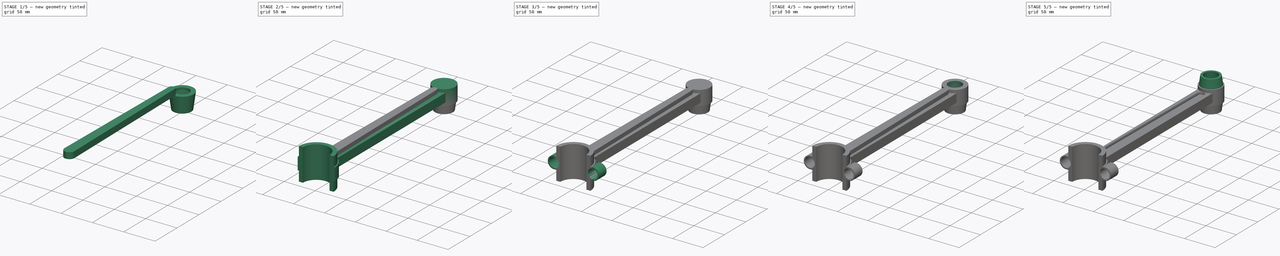
[diagram: build sequence overview — one tinted view per stage of 5, left to right]
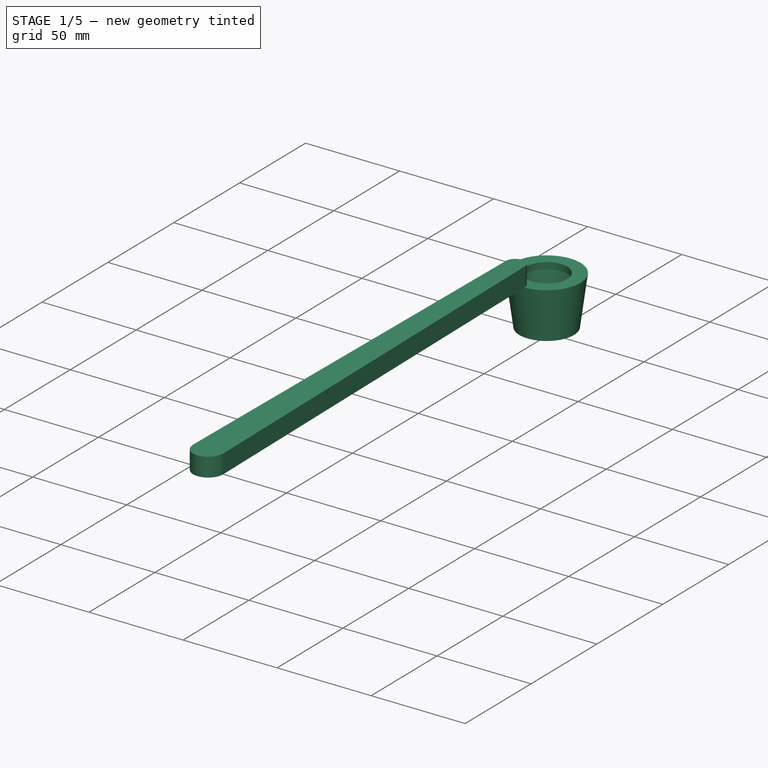
[diagram: stage 1 of 5 — iso view after this stage's code; geometry added in this stage tinted green]
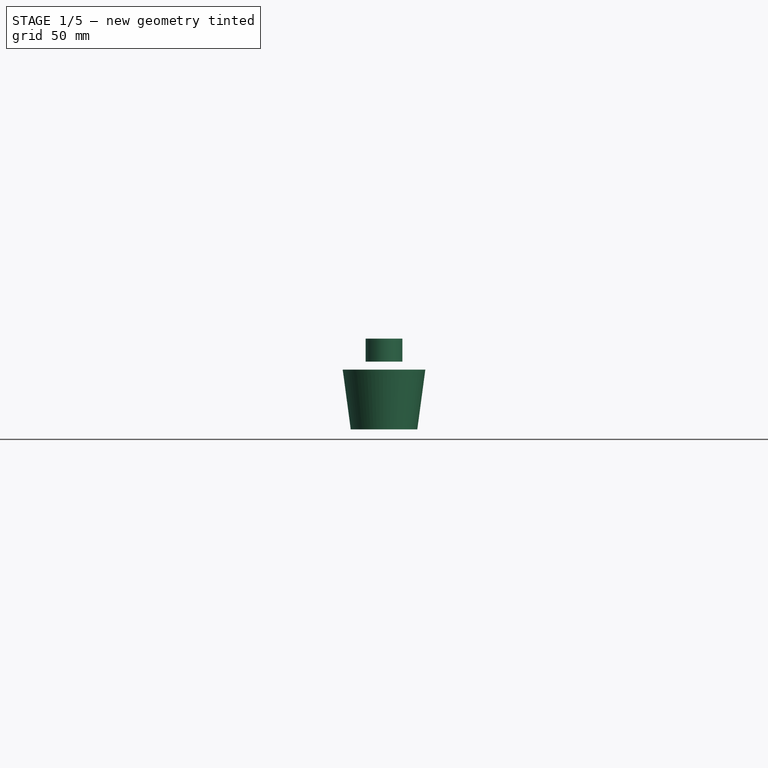
[diagram: stage 1 of 5 — front view after this stage's code; geometry added in this stage tinted green]
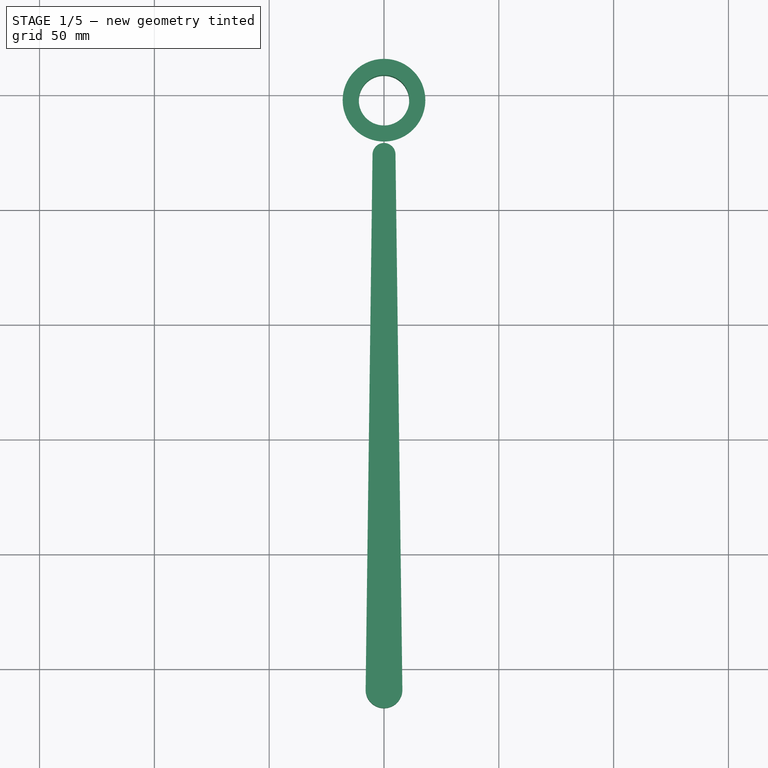
[diagram: stage 1 of 5 — top view after this stage's code; geometry added in this stage tinted green]
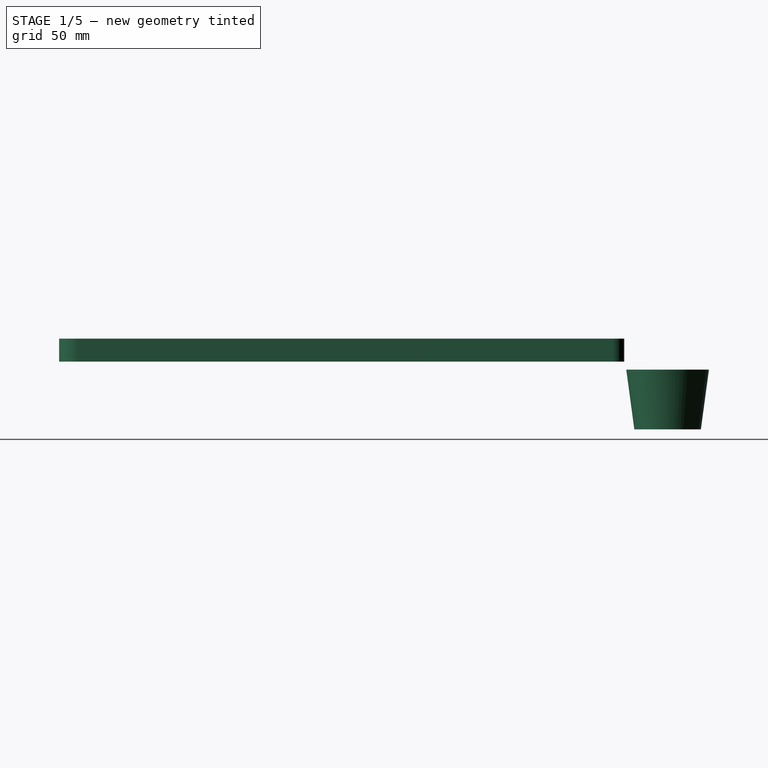
[diagram: stage 1 of 5 — right view after this stage's code; geometry added in this stage tinted green]
FCSTD DOCUMENT  (FreeCAD 0.16R6700 (Git))
Label: Biela Automovil B
License: All rights reserved
LicenseURL: http://en.wikipedia.org/wiki/All_rights_reserved
objects: Sketcher::SketchObject×14, PartDesign::Pocket×7, PartDesign::Pad×6, Part::MultiFuse×5, PartDesign::Fillet×4, Part::Cone×1, Part::Thickness×1, Part::Mirroring×1, Part::Cut×1
note: 53 computed .brp shape members not serialized (recipe doc carries the construction recipe); baked Part::Feature solids carry a one-line shape summary decoded from their .brp

FEATURE [Part::Cone] Cone  label="Cono"
  Angle = 360
  Height = 26
  Placement = pos=(0,147.5,0) rot=(0,0,1;0rad)
  Radius1 = 18
  Radius2 = 14.5
FEATURE [Part::Thickness] Thickness
  Faces = -> Cone [Face2]
  Intersection = true
  Join = 2
  Mode = 1
  SelfIntersection = false
  Value = -3.5
FEATURE [Sketcher::SketchObject] Sketch009
  Placement = pos=(0,0,3.5) rot=(0,0,1;0rad)
  Support = -> Thickness [Face5]
  sketch-geometry (1):
    g0: Circle CenterX=0 CenterY=147.5 CenterZ=0 NormalX=0 NormalY=0 NormalZ=1 Radius=11
  constraints (3):
    c: Radius(g0) = 11
    c: PointOnObject(g0,g-2)
    c: DistanceY(g-1,g0) = 147.5
FEATURE [PartDesign::Pocket] Pocket003
  Length = 5
  Sketch = -> Sketch009
  Type = 1
FEATURE [Part::Mirroring] Part__Mirroring  label="Pocket003 (Mirror #1)"
  Base = (0,0,0)
  Normal = (0,0,1)
  Source = -> Pocket003
FEATURE [Sketcher::SketchObject] Sketch012
  Placement = pos=(0,0,3.5) rot=(0,0,1;0rad)
  sketch-geometry (4):
    g0: ArcOfCircle CenterX=0 CenterY=123.628 CenterZ=0 NormalX=0 NormalY=0 NormalZ=1 Radius=5 StartAngle=0.0128688 EndAngle=3.12872
    g1: ArcOfCircle CenterX=0 CenterY=-109.5 CenterZ=0 NormalX=0 NormalY=0 NormalZ=1 Radius=8 StartAngle=3.12872 EndAngle=6.29605
    g2: LineSegment StartX=-4.99959 StartY=123.693 StartZ=0 EndX=-7.99934 EndY=-109.397 EndZ=0
    g3: LineSegment StartX=4.99959 StartY=123.693 StartZ=0 EndX=7.99934 EndY=-109.397 EndZ=0
  constraints (9):
    c: Tangent(g0,g3) = 1.5708
    c: Tangent(g0,g2) = -1.5708
    c: Tangent(g2,g1) = -1.5708
    c: Tangent(g3,g1) = 1.5708
    c: Radius(g1) = 8
    c: Radius(g0) = 5
    c: PointOnObject(g0,g-2)
    c: PointOnObject(g1,g-2)
    c: DistanceY(g1,g-1) = 109.5
FEATURE [PartDesign::Pad] Pad005
  Length = 10
  Length2 = 100
  Placement = pos=(0,0,3.5) rot=(0,0,1;0rad)
  Sketch = -> Sketch012
  Type = 0
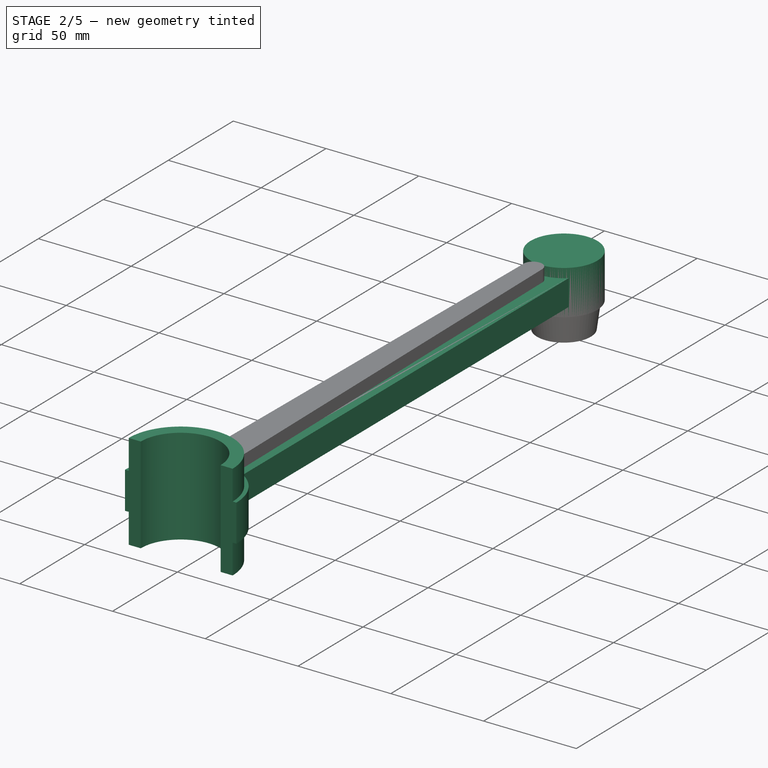
[diagram: stage 2 of 5 — iso view after this stage's code; geometry added in this stage tinted green]
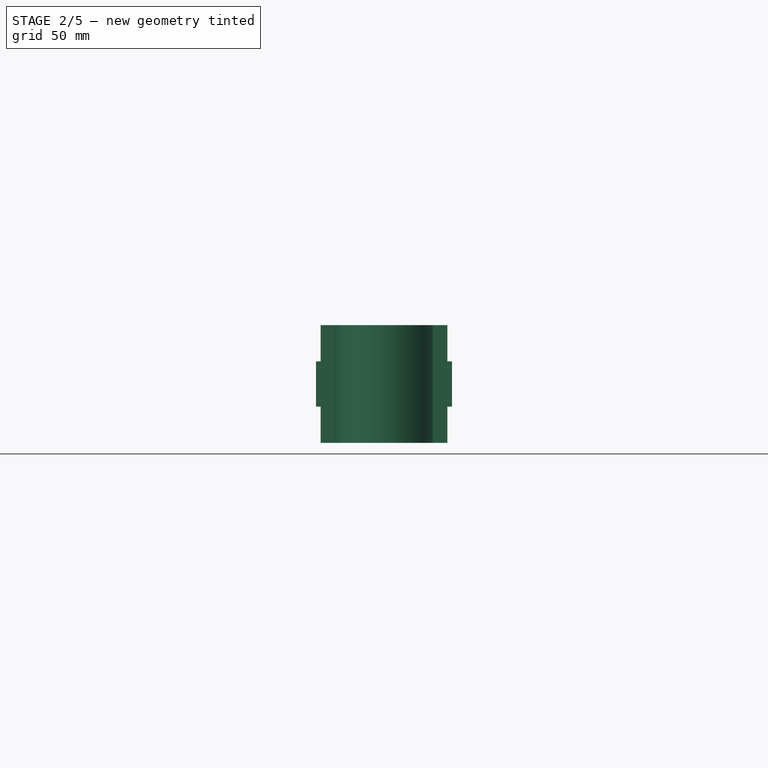
[diagram: stage 2 of 5 — front view after this stage's code; geometry added in this stage tinted green]
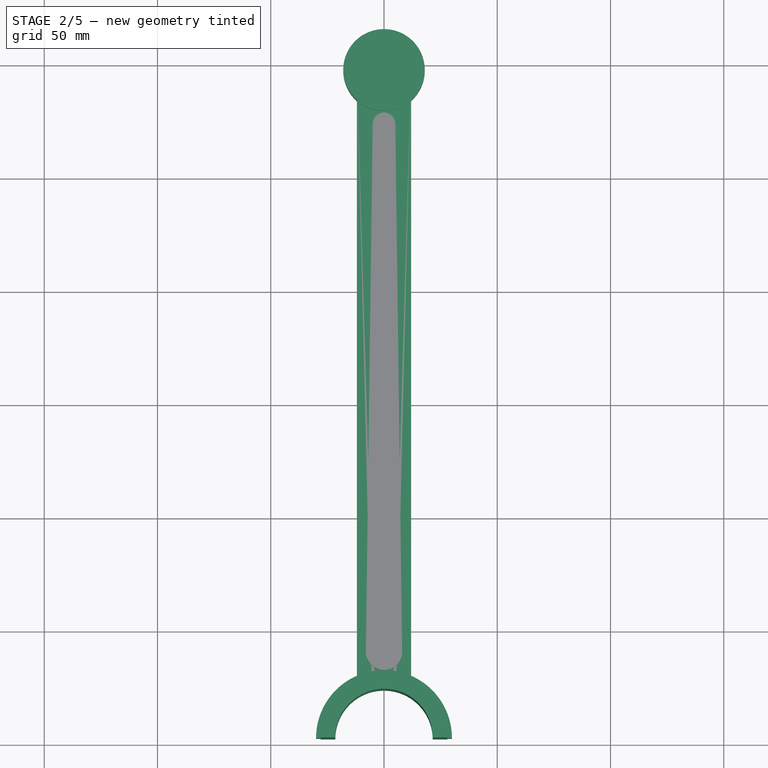
[diagram: stage 2 of 5 — top view after this stage's code; geometry added in this stage tinted green]
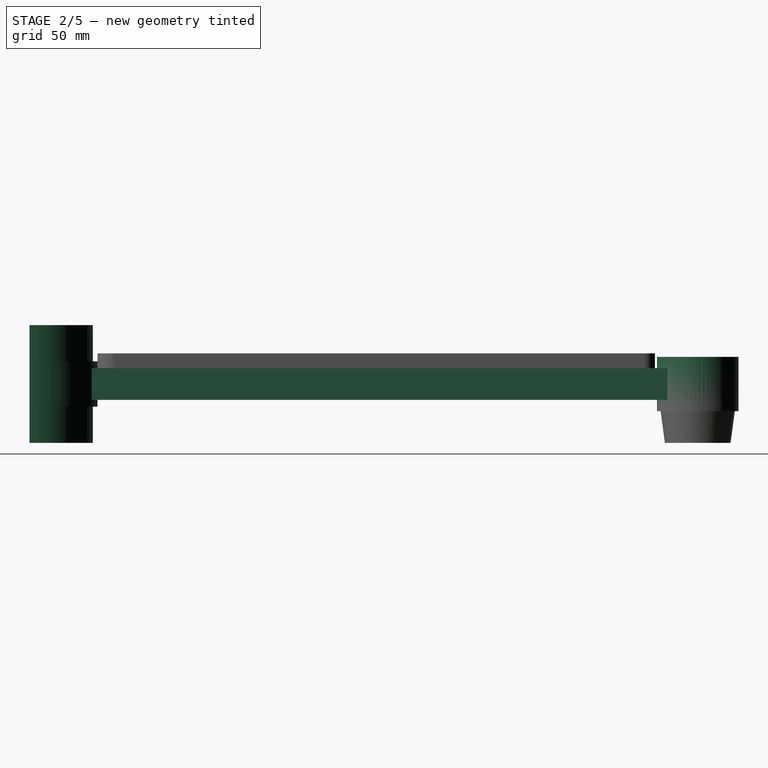
[diagram: stage 2 of 5 — right view after this stage's code; geometry added in this stage tinted green]
FEATURE [Sketcher::SketchObject] Sketch
  sketch-geometry (4):
    g0: LineSegment StartX=-12 StartY=147.5 StartZ=0 EndX=12 EndY=147.5 EndZ=0
    g1: LineSegment StartX=12 StartY=147.5 StartZ=0 EndX=12 EndY=-147.5 EndZ=0
    g2: LineSegment StartX=12 StartY=-147.5 StartZ=0 EndX=-12 EndY=-147.5 EndZ=0
    g3: LineSegment StartX=-12 StartY=-147.5 StartZ=0 EndX=-12 EndY=147.5 EndZ=0
  constraints (12):
    c: Coincident(g0,g1)
    c: Coincident(g1,g2)
    c: Coincident(g2,g3)
    c: Coincident(g3,g0)
    c: Horizontal(g0)
    c: Horizontal(g2)
    c: Vertical(g1)
    c: Vertical(g3)
    c: DistanceX(g2,g2) = 24
    c: DistanceY(g1,g1) = 295
    c: Symmetric(g1,g2,g-2)
    c: Symmetric(g2,g0,g-1)
FEATURE [PartDesign::Pad] Pad
  Length = 14
  Length2 = 100
  Midplane = true
  Sketch = -> Sketch
  Type = 0
FEATURE [Sketcher::SketchObject] Sketch001
  sketch-geometry (4):
    g0: ArcOfCircle CenterX=0 CenterY=-147.5 CenterZ=0 NormalX=0 NormalY=0 NormalZ=1 Radius=30 StartAngle=0 EndAngle=3.14159
    g1: ArcOfCircle CenterX=0 CenterY=-147.5 CenterZ=0 NormalX=0 NormalY=0 NormalZ=1 Radius=28 StartAngle=0 EndAngle=3.14159
    g2: LineSegment StartX=28 StartY=-147.5 StartZ=0 EndX=30 EndY=-147.5 EndZ=0
    g3: LineSegment StartX=-28 StartY=-147.5 StartZ=0 EndX=-30 EndY=-147.5 EndZ=0
  constraints (13):
    c: PointOnObject(g0,g-2)
    c: Coincident(g0,g1)
    c: DistanceY(g0,g-1) = 147.5
    c: Coincident(g2,g1)
    c: Coincident(g2,g0)
    c: Coincident(g3,g1)
    c: Coincident(g3,g0)
    c: Horizontal(g3)
    c: Horizontal(g2)
    c: DistanceY(g1,g0) = 0
    c: DistanceY(g0,g0) = 0
    c: Radius(g1) = 28
    c: Radius(g0) = 30
FEATURE [PartDesign::Pad] Pad001
  Length = 20
  Length2 = 100
  Midplane = true
  Sketch = -> Sketch001
  Type = 0
FEATURE [Sketcher::SketchObject] Sketch002
  Placement = pos=(0,0,7) rot=(0,0,1;0rad)
  Support = -> Pad [Face6]
  sketch-geometry (1):
    g0: Circle CenterX=0 CenterY=-147.5 CenterZ=0 NormalX=0 NormalY=0 NormalZ=1 Radius=28
  constraints (3):
    c: PointOnObject(g0,g-2)
    c: DistanceY(g0,g-1) = 147.5
    c: Radius(g0) = 28
FEATURE [PartDesign::Pocket] Pocket
  Length = 5
  Sketch = -> Sketch002
  Type = 1
FEATURE [Sketcher::SketchObject] Sketch003
  sketch-geometry (4):
    g0: ArcOfCircle CenterX=0 CenterY=-147.5 CenterZ=0 NormalX=0 NormalY=0 NormalZ=1 Radius=28 StartAngle=0 EndAngle=3.14159
    g1: ArcOfCircle CenterX=0 CenterY=-147.5 CenterZ=0 NormalX=0 NormalY=0 NormalZ=1 Radius=21.5 StartAngle=0 EndAngle=3.14159
    g2: LineSegment StartX=-21.5 StartY=-147.5 StartZ=0 EndX=-28 EndY=-147.5 EndZ=0
    g3: LineSegment StartX=21.5 StartY=-147.5 StartZ=0 EndX=28 EndY=-147.5 EndZ=0
  constraints (13):
    c: PointOnObject(g0,g-2)
    c: Coincident(g0,g1)
    c: Coincident(g2,g1)
    c: Coincident(g2,g0)
    c: Coincident(g3,g1)
    c: Coincident(g3,g0)
    c: Horizontal(g2)
    c: Horizontal(g3)
    c: DistanceY(g0,g-1) = 147.5
    c: Radius(g0) = 28
    c: Radius(g1) = 21.5
    c: DistanceY(g1,g0) = 0
    c: DistanceY(g0,g1) = 0
FEATURE [PartDesign::Pad] Pad002
  Length = 52
  Length2 = 100
  Midplane = true
  Sketch = -> Sketch003
  Type = 0
FEATURE [Sketcher::SketchObject] Sketch007
  sketch-geometry (1):
    g0: Circle CenterX=0 CenterY=147.5 CenterZ=0 NormalX=0 NormalY=0 NormalZ=1 Radius=18
  constraints (3):
    c: PointOnObject(g0,g-2)
    c: DistanceY(g-1,g0) = 147.5
    c: Radius(g0) = 18
FEATURE [PartDesign::Pad] Pad004
  Length = 24
  Length2 = 100
  Midplane = true
  Sketch = -> Sketch007
  Type = 0
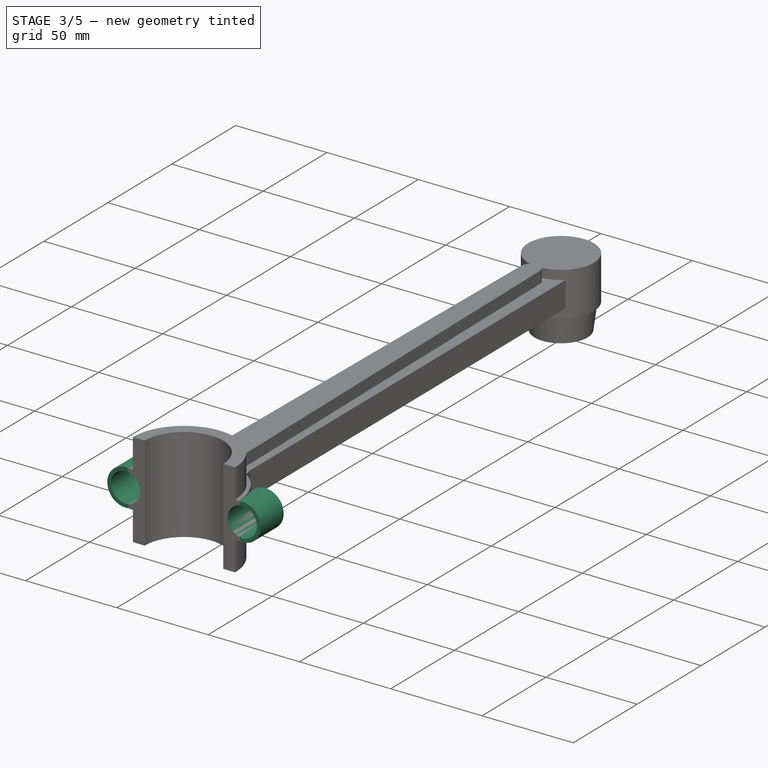
[diagram: stage 3 of 5 — iso view after this stage's code; geometry added in this stage tinted green]
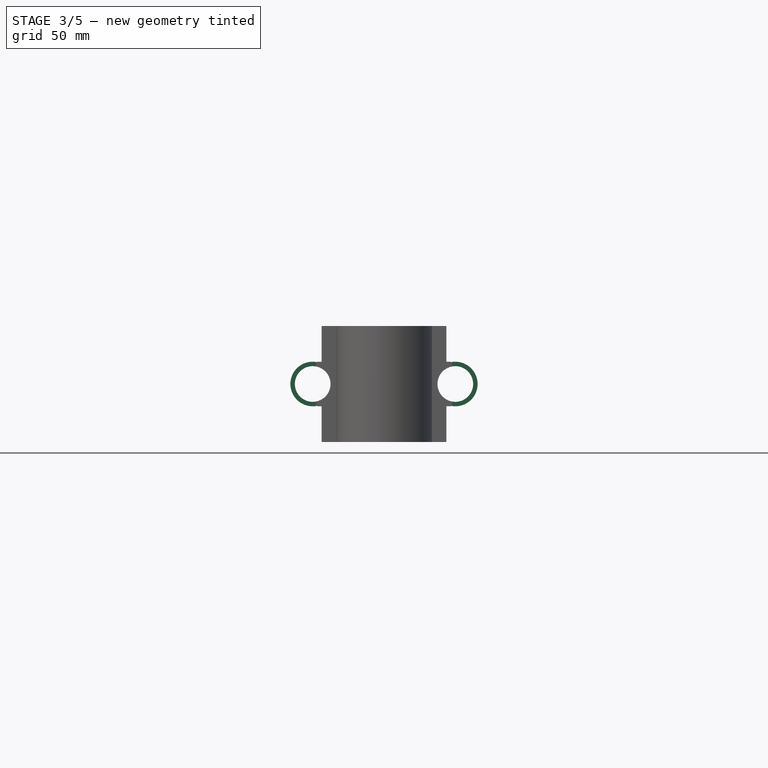
[diagram: stage 3 of 5 — front view after this stage's code; geometry added in this stage tinted green]
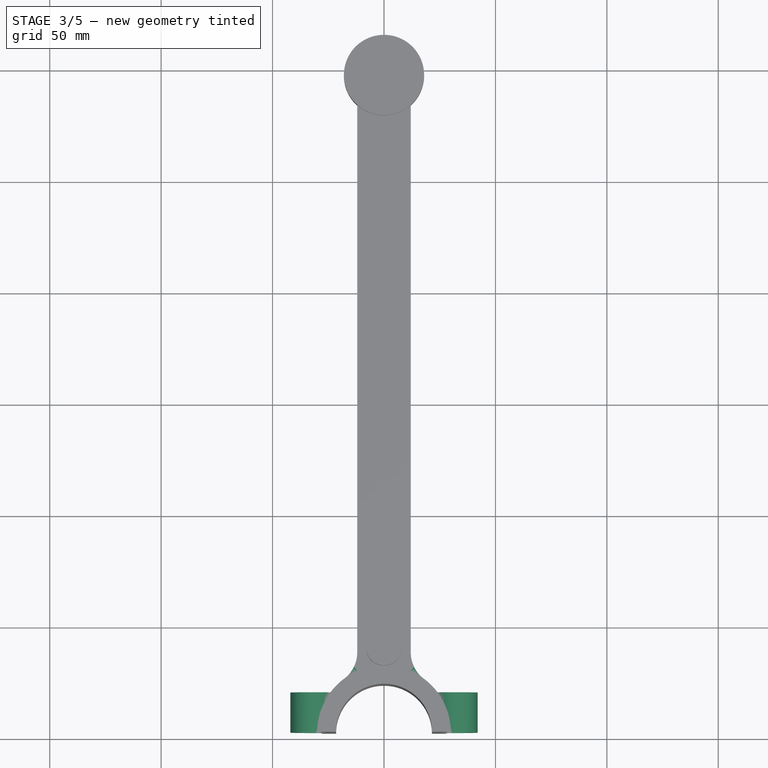
[diagram: stage 3 of 5 — top view after this stage's code; geometry added in this stage tinted green]
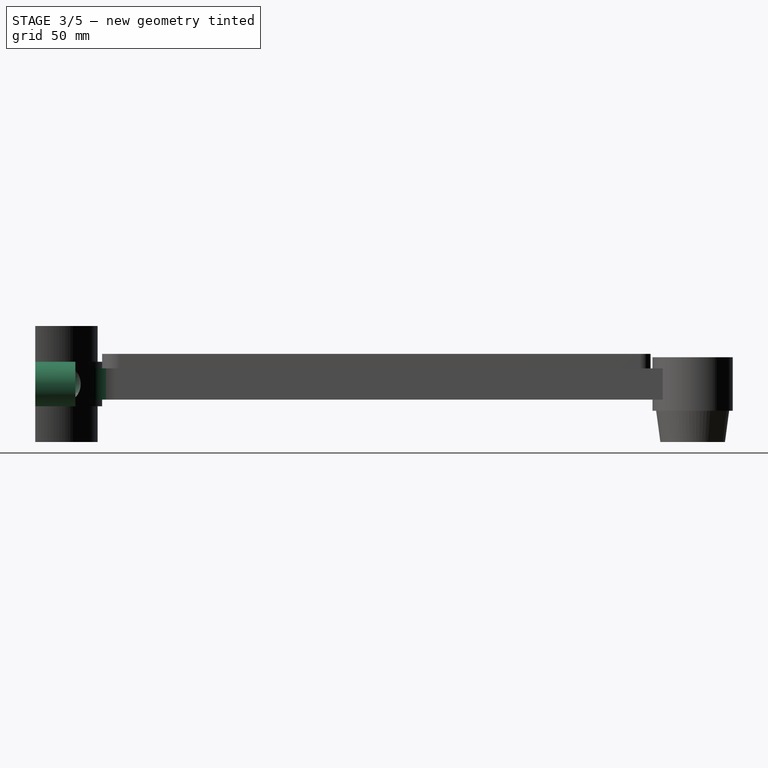
[diagram: stage 3 of 5 — right view after this stage's code; geometry added in this stage tinted green]
FEATURE [Part::MultiFuse] Fusion
  Shapes = -> [Pocket,Pad001]
FEATURE [PartDesign::Fillet] Fillet
  Base = -> Fusion [Edge9]
  Radius = 15
FEATURE [PartDesign::Fillet] Fillet001
  Base = -> Fillet [Edge17]
  Radius = 15
FEATURE [Part::MultiFuse] Fusion001
  Shapes = -> [Pad002,Fillet001]
FEATURE [Sketcher::SketchObject] Sketch004
FEATURE [Sketcher::SketchObject] Sketch005
  Placement = pos=(0,-147.5,0) rot=(1,0,0;1.5708rad)
  Support = -> Fusion001 [Face16]
  sketch-geometry (2):
    g0: Circle CenterX=32 CenterY=0 CenterZ=0 NormalX=0 NormalY=0 NormalZ=1 Radius=10
    g1: Circle CenterX=-32 CenterY=0 CenterZ=0 NormalX=0 NormalY=0 NormalZ=1 Radius=10
  constraints (4):
    c: PointOnObject(g0,g-1)
    c: Radius(g0) = 10
    c: DistanceX(g-1,g0) = 32
    c: Radius(g1) = 10
FEATURE [PartDesign::Pocket] Pocket001
  Length = 5
  Sketch = -> Sketch005
  Type = 1
FEATURE [Sketcher::SketchObject] Sketch006
  Placement = pos=(0,-147.5,0) rot=(1,0,0;1.5708rad)
  Support = -> Pocket001 [Face2]
  sketch-geometry (4):
    g0: Circle CenterX=32 CenterY=0 CenterZ=0 NormalX=0 NormalY=0 NormalZ=1 Radius=10
    g1: Circle CenterX=32 CenterY=0 CenterZ=0 NormalX=0 NormalY=0 NormalZ=1 Radius=8
    g2: Circle CenterX=-32 CenterY=0 CenterZ=0 NormalX=0 NormalY=0 NormalZ=1 Radius=10
    g3: Circle CenterX=-32 CenterY=0 CenterZ=0 NormalX=0 NormalY=0 NormalZ=1 Radius=8
  constraints (9):
    c: PointOnObject(g0,g-1)
    c: PointOnObject(g1,g-1)
    c: Radius(g0) = 10
    c: Radius(g1) = 8
    c: Coincident(g0,g1)
    c: DistanceX(g-1,g0) = 32
    c: Radius(g2) = 10
    c: Radius(g3) = 8
    c: Coincident(g2,g3)
FEATURE [PartDesign::Pad] Pad003
  Length = 18
  Length2 = 100
  Reversed = true
  Sketch = -> Sketch006
  Type = 0
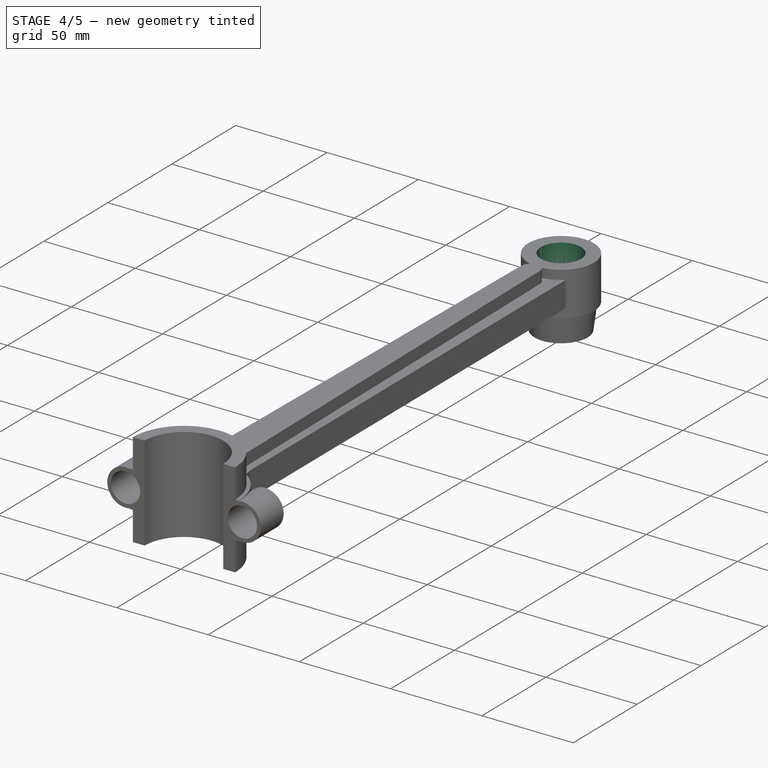
[diagram: stage 4 of 5 — iso view after this stage's code; geometry added in this stage tinted green]
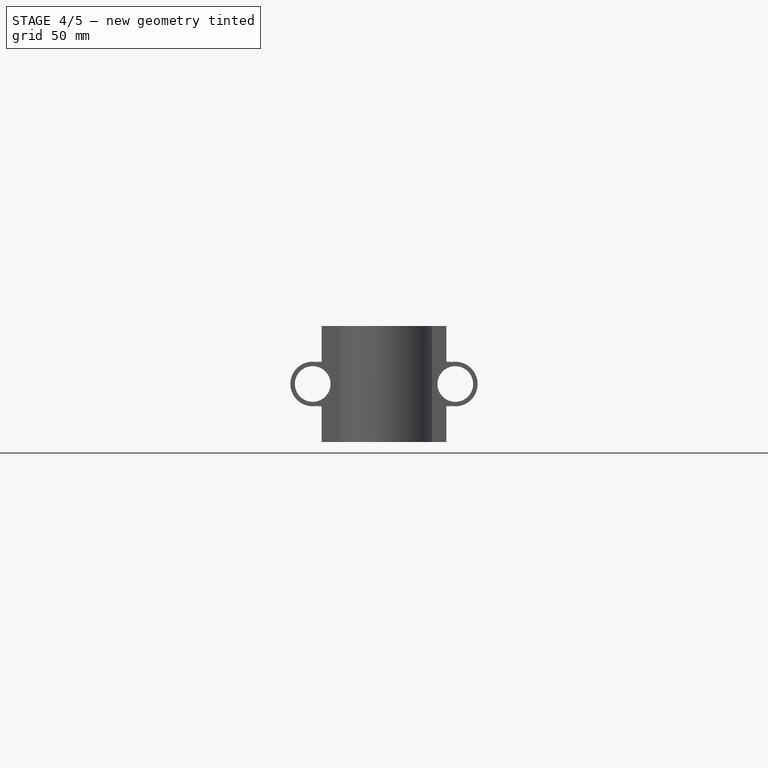
[diagram: stage 4 of 5 — front view after this stage's code; geometry added in this stage tinted green]
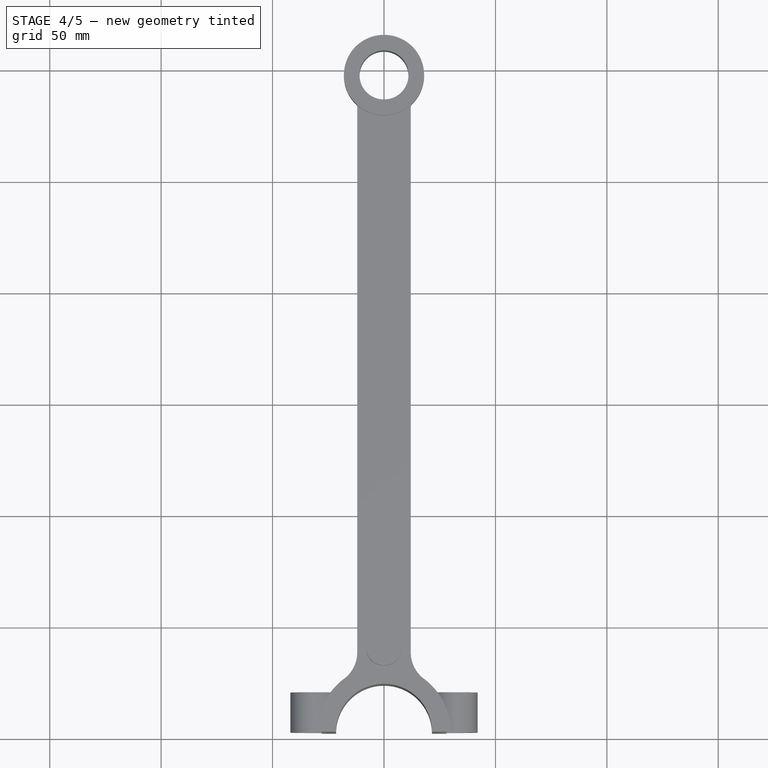
[diagram: stage 4 of 5 — top view after this stage's code; geometry added in this stage tinted green]
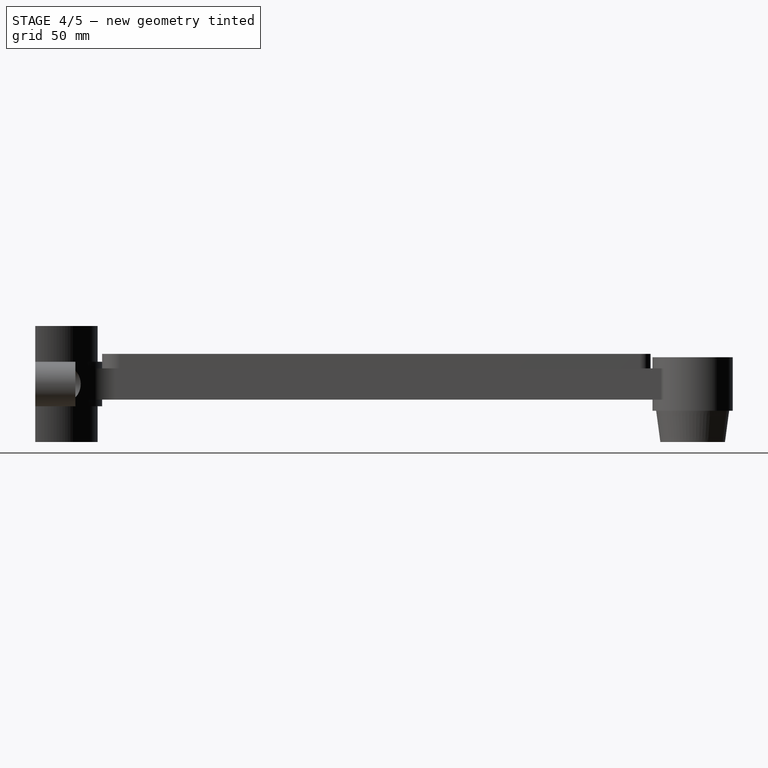
[diagram: stage 4 of 5 — right view after this stage's code; geometry added in this stage tinted green]
FEATURE [Part::MultiFuse] Fusion002
  Shapes = -> [Pad004,Pad003]
FEATURE [PartDesign::Fillet] Fillet002
  Base = -> Fusion002 [Edge4]
  Radius = 2
FEATURE [PartDesign::Fillet] Fillet003
  Base = -> Fillet002 [Edge4]
  Radius = 2
FEATURE [Sketcher::SketchObject] Sketch008
  ExternalGeometry = -> [Fillet003]
  Placement = pos=(0,0,12) rot=(0,0,1;0rad)
  Support = -> Fillet003 [Face7]
  sketch-geometry (1):
    g0: Circle CenterX=0 CenterY=147.5 CenterZ=0 NormalX=0 NormalY=0 NormalZ=1 Radius=11
  constraints (2):
    c: Coincident(g0,g-3)
    c: Radius(g0) = 11
FEATURE [PartDesign::Pocket] Pocket002
  Length = 5
  Sketch = -> Sketch008
  Type = 1
FEATURE [Part::MultiFuse] Fusion003
  Shapes = -> [Pocket002,Part__Mirroring]
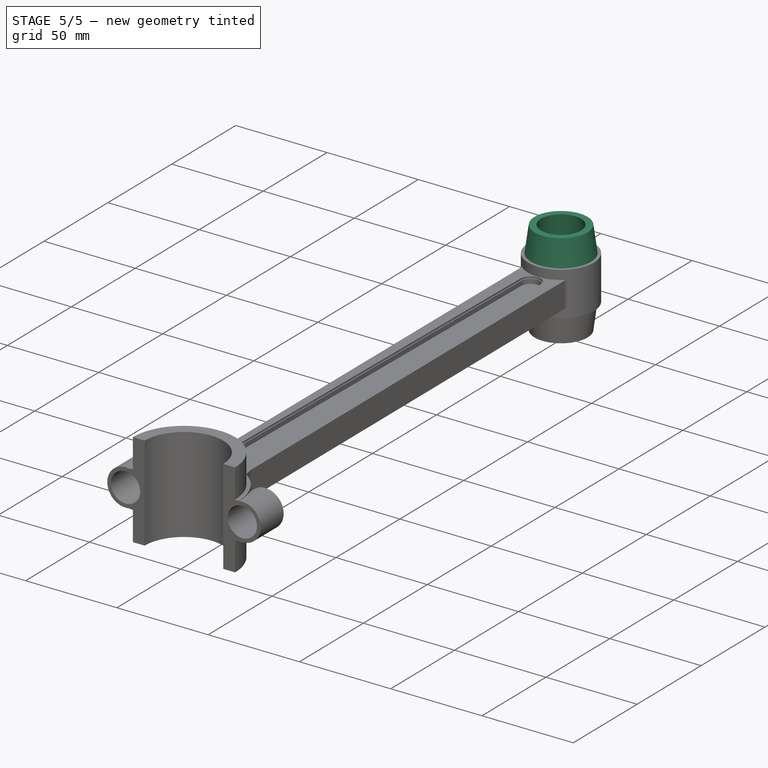
[diagram: stage 5 of 5 — iso view after this stage's code; geometry added in this stage tinted green]
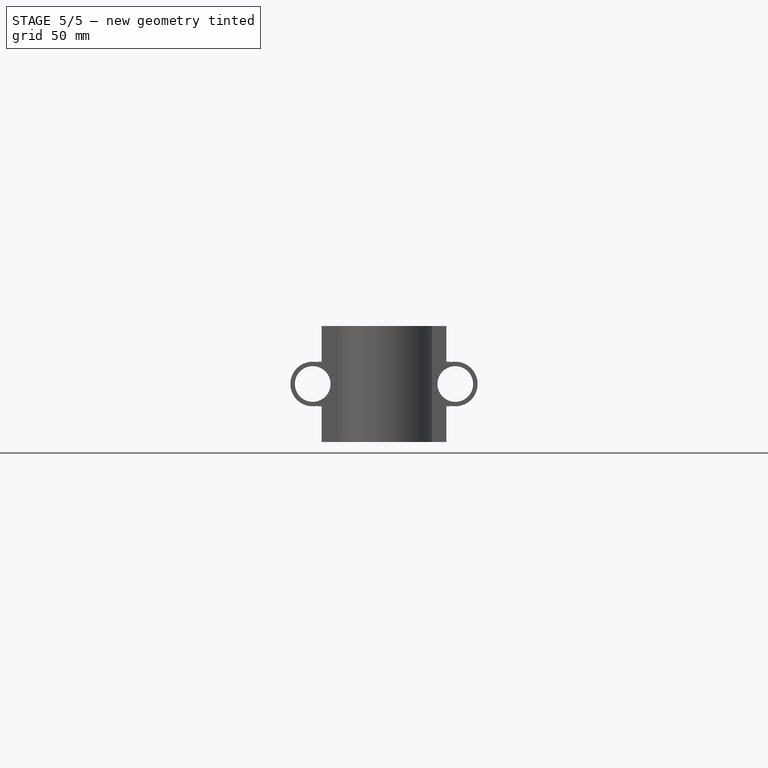
[diagram: stage 5 of 5 — front view after this stage's code; geometry added in this stage tinted green]
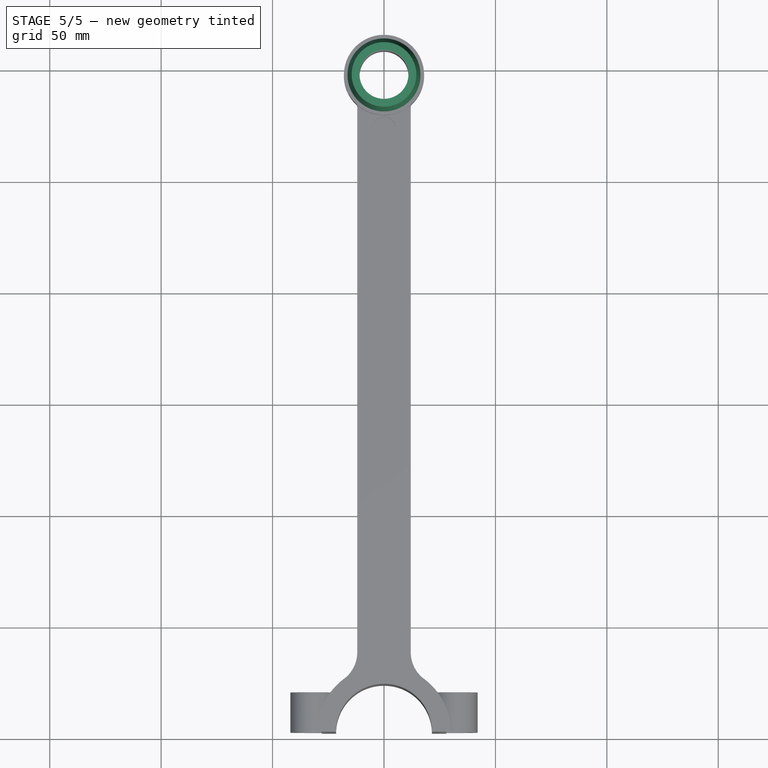
[diagram: stage 5 of 5 — top view after this stage's code; geometry added in this stage tinted green]
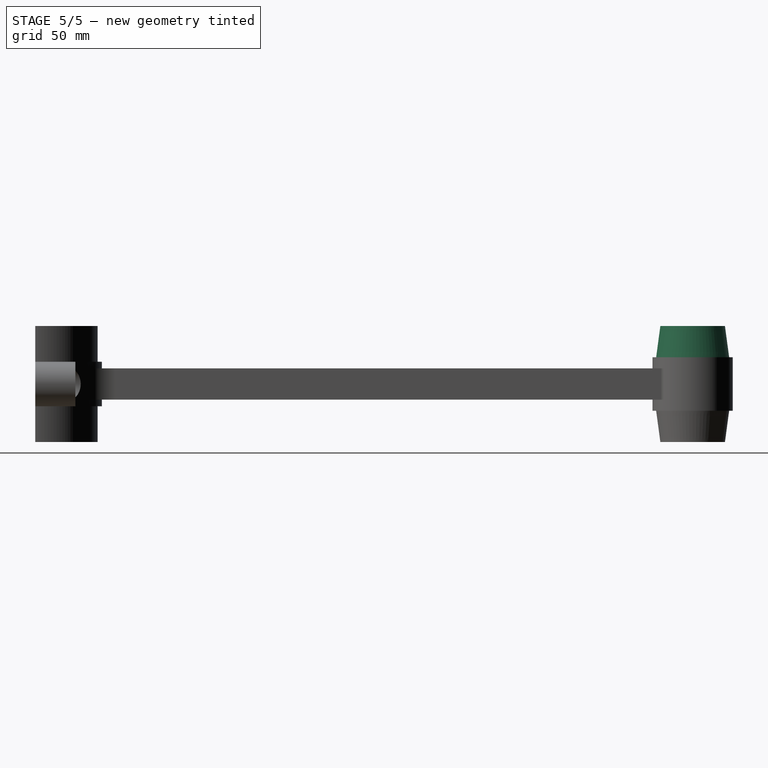
[diagram: stage 5 of 5 — right view after this stage's code; geometry added in this stage tinted green]
FEATURE [Sketcher::SketchObject] Sketch011
  ExternalGeometry = -> [Fusion003]
  Placement = pos=(0,0,-7) rot=(1,0,0;3.14159rad)
  Support = -> Fusion003 [Face16]
  sketch-geometry (4):
    g0: ArcOfCircle CenterX=0 CenterY=109.5 CenterZ=0 NormalX=0 NormalY=0 NormalZ=1 Radius=8 StartAngle=6.27031 EndAngle=9.43765
    g1: ArcOfCircle CenterX=0 CenterY=-123.5 CenterZ=0 NormalX=0 NormalY=0 NormalZ=1 Radius=5 StartAngle=3.15447 EndAngle=6.27031
    g2: LineSegment StartX=-7.99934 StartY=109.397 StartZ=0 EndX=-4.99959 EndY=-123.564 EndZ=0
    g3: LineSegment StartX=7.99934 StartY=109.397 StartZ=0 EndX=4.99959 EndY=-123.564 EndZ=0
  constraints (10):
    c: Tangent(g0,g3) = 1.5708
    c: Tangent(g0,g2) = -1.5708
    c: Tangent(g2,g1) = -1.5708
    c: Tangent(g3,g1) = 1.5708
    c: DistanceY(g1,g0) = 233
    c: Radius(g1) = 5
    c: Radius(g0) = 8
    c: PointOnObject(g0,g-2)
    c: PointOnObject(g1,g-2)
    c: Tangent(g-3,g0)
FEATURE [PartDesign::Pocket] Pocket004
  Length = 3.5
  Sketch = -> Sketch011
  Type = 0
FEATURE [Part::Cut] Cut
  Base = -> Pocket004
  Tool = -> Pad005
FEATURE [Sketcher::SketchObject] Sketch013
  ExternalGeometry = -> [Cut]
  Placement = pos=(0,0,12) rot=(0,0,1;0rad)
  Support = -> Cut [Face4]
  sketch-geometry (4):
    g0: ArcOfCircle CenterX=0 CenterY=123.628 CenterZ=0 NormalX=0 NormalY=0 NormalZ=1 Radius=5.5 StartAngle=0.0128688 EndAngle=3.12872
    g1: ArcOfCircle CenterX=0 CenterY=-109.5 CenterZ=0 NormalX=0 NormalY=0 NormalZ=1 Radius=8.5 StartAngle=3.12872 EndAngle=6.29605
    g2: LineSegment StartX=-5.49954 StartY=123.699 StartZ=0 EndX=-8.4993 EndY=-109.391 EndZ=0
    g3: LineSegment StartX=5.49954 StartY=123.699 StartZ=0 EndX=8.4993 EndY=-109.391 EndZ=0
  constraints (8):
    c: Tangent(g0,g3) = 1.5708
    c: Tangent(g0,g2) = -1.5708
    c: Tangent(g2,g1) = -1.5708
    c: Tangent(g3,g1) = 1.5708
    c: Radius(g0) = 5.5
    c: Radius(g1) = 8.5
    c: Coincident(g1,g-7)
    c: Coincident(g0,g-3)
FEATURE [PartDesign::Pocket] Pocket005
  Length = 6
  Sketch = -> Sketch013
  Type = 0
FEATURE [Sketcher::SketchObject] Sketch014
  ExternalGeometry = -> [Pocket005]
  Placement = pos=(0,0,-10) rot=(1,0,0;3.14159rad)
  Support = -> Pocket005 [Face26]
  sketch-geometry (4):
    g0: ArcOfCircle CenterX=0 CenterY=109.5 CenterZ=0 NormalX=0 NormalY=0 NormalZ=1 Radius=8.5 StartAngle=6.27031 EndAngle=9.43765
    g1: ArcOfCircle CenterX=0 CenterY=-123.5 CenterZ=0 NormalX=0 NormalY=0 NormalZ=1 Radius=5.5 StartAngle=3.15447 EndAngle=6.27031
    g2: LineSegment StartX=-8.4993 StartY=109.391 StartZ=0 EndX=-5.49954 EndY=-123.571 EndZ=0
    g3: LineSegment StartX=8.4993 StartY=109.391 StartZ=0 EndX=5.49954 EndY=-123.571 EndZ=0
  constraints (8):
    c: Tangent(g0,g3) = 1.5708
    c: Tangent(g0,g2) = -1.5708
    c: Tangent(g2,g1) = -1.5708
    c: Tangent(g3,g1) = 1.5708
    c: Radius(g1) = 5.5
    c: Radius(g0) = 8.5
    c: Coincident(g0,g-4)
    c: Coincident(g1,g-7)
FEATURE [PartDesign::Pocket] Pocket006
  Length = 4
  Sketch = -> Sketch014
  Type = 0
FEATURE [Part::MultiFuse] Fusion004
  Shapes = -> [Pocket006,Pocket003]
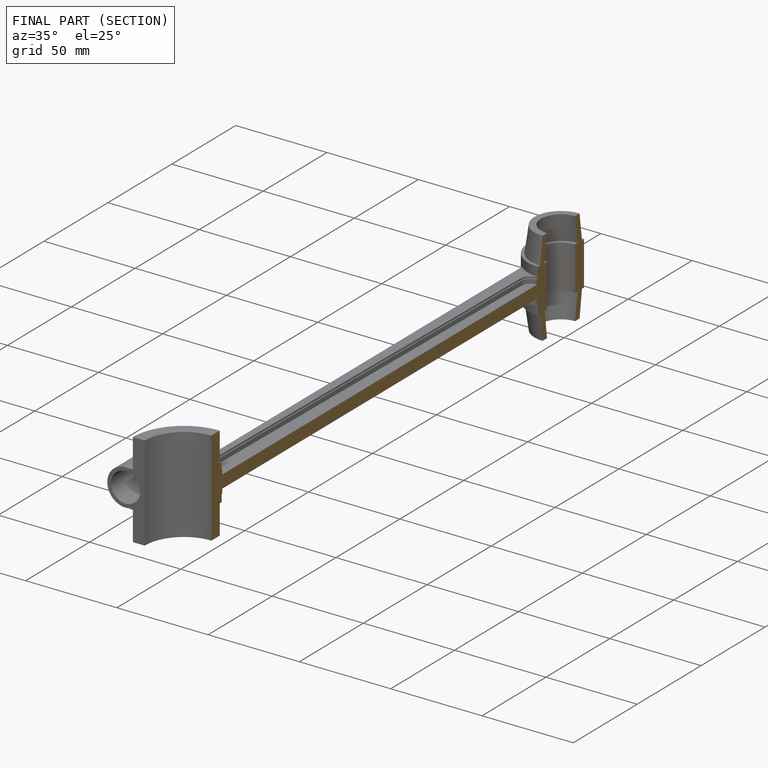
[diagram: finished part — half-section view (interior)]
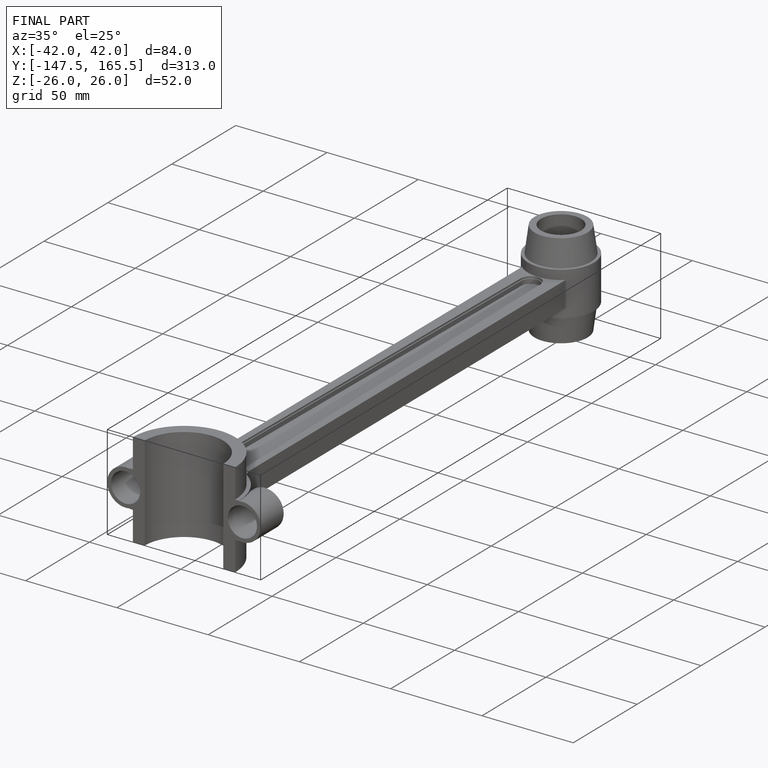
[diagram: finished part — iso view with bounding-box wireframe]
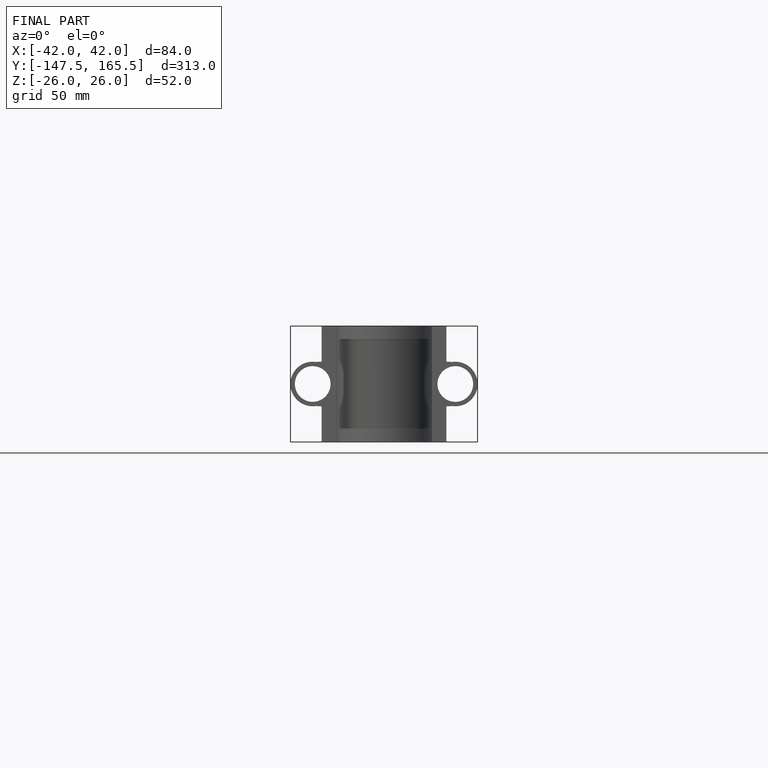
[diagram: finished part — front view with bounding-box wireframe]
